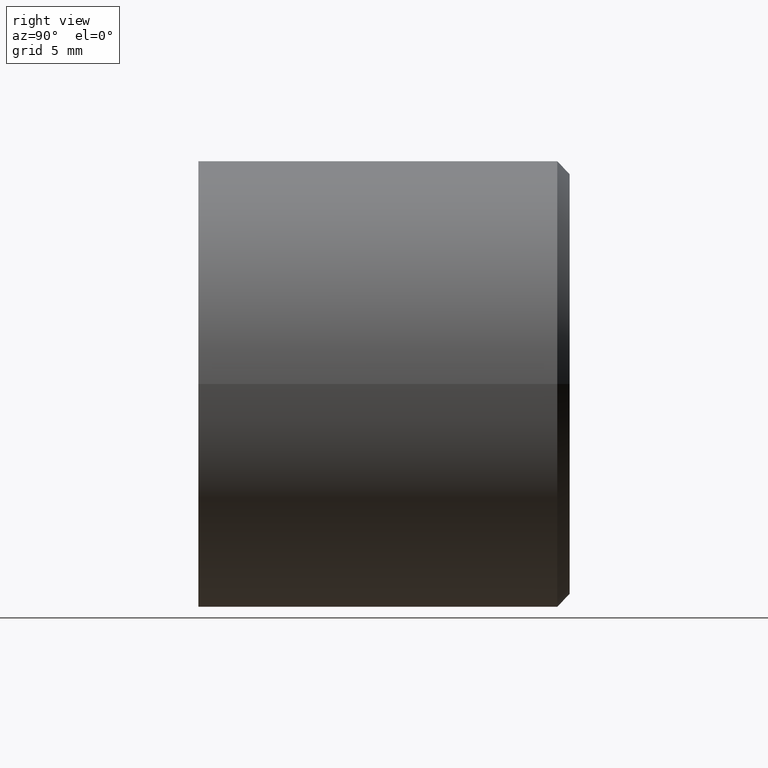
[diagram: clean part render]
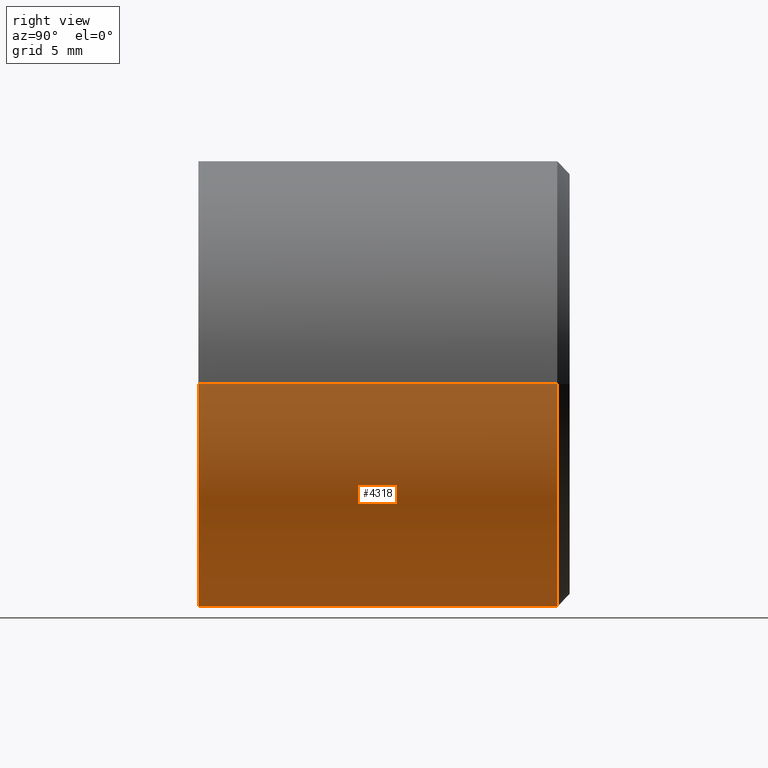
[diagram: same view with one face highlighted and labeled with its STEP entity id]
A machine part, right view. The second image highlights one B-rep face of the part: STEP entity #4318.
In plain terms, the highlighted cylindrical surface (partial cylindrical patch) has radius 9 mm, axis along (-0, 1, -0).
Its self-contained STEP definition (entity closure, byte-faithful):
#114 = EDGE_LOOP ( 'NONE', ( #12841, #4672, #11930, #12705 ) ) ;
#690 = CARTESIAN_POINT ( 'NONE',  ( 9.000000000000000000, 1.795400996330743280E-16, 1.102182119232617714E-15 ) ) ;
#1029 = DIRECTION ( 'NONE',  ( -1.994889995923048226E-17, 1.000000000000000000, -0.000000000000000000 ) ) ;
#1764 = CARTESIAN_POINT ( 'NONE',  ( -9.000000000000000000, 14.99999999999999822, 0.000000000000000000 ) ) ;
#1974 = EDGE_CURVE ( 'NONE', #6888, #9644, #5735, .T. ) ;
#2076 = VERTEX_POINT ( 'NONE', #9296 ) ;
#3028 = DIRECTION ( 'NONE',  ( -1.000000000000000000, -1.994889995923048226E-17, 0.000000000000000000 ) ) ;
#3066 = VECTOR ( 'NONE', #12370, 1000.000000000000000 ) ;
#3678 = DIRECTION ( 'NONE',  ( 1.000000000000000000, 0.000000000000000000, 0.000000000000000000 ) ) ;
#3853 = DIRECTION ( 'NONE',  ( -1.994889995923048226E-17, 1.000000000000000000, -0.000000000000000000 ) ) ;
#3942 = CARTESIAN_POINT ( 'NONE',  ( -9.000000000000000000, -1.795400996330743280E-16, 0.000000000000000000 ) ) ;
#4318 = ADVANCED_FACE ( 'NONE', ( #12639 ), #11055, .T. ) ;
#4672 = ORIENTED_EDGE ( 'NONE', *, *, #1974, .T. ) ;
#4816 = DIRECTION ( 'NONE',  ( 1.994889995923048534E-17, -1.000000000000000000, 0.000000000000000000 ) ) ;
#5610 = LINE ( 'NONE', #1764, #3066 ) ;
#5735 = CIRCLE ( 'NONE', #9312, 9.000000000000000000 ) ;
#5768 = CARTESIAN_POINT ( 'NONE',  ( 9.000000000000000000, 14.49999999999999645, 1.102182119232617714E-15 ) ) ;
#6553 = VERTEX_POINT ( 'NONE', #5768 ) ;
#6884 = CARTESIAN_POINT ( 'NONE',  ( 9.000000000000000000, 14.99999999999999822, 1.102182119232617714E-15 ) ) ;
#6888 = VERTEX_POINT ( 'NONE', #690 ) ;
#6992 = EDGE_CURVE ( 'NONE', #9644, #2076, #5610, .T. ) ;
#7334 = AXIS2_PLACEMENT_3D ( 'NONE', #10859, #4816, #3678 ) ;
#7462 = LINE ( 'NONE', #6884, #8717 ) ;
#8057 = CARTESIAN_POINT ( 'NONE',  ( 2.992334993884571723E-16, 0.000000000000000000, 0.000000000000000000 ) ) ;
#8717 = VECTOR ( 'NONE', #3853, 1000.000000000000000 ) ;
#9069 = DIRECTION ( 'NONE',  ( -1.994889995923048226E-17, 1.000000000000000000, -0.000000000000000000 ) ) ;
#9090 = DIRECTION ( 'NONE',  ( -1.000000000000000000, 0.000000000000000000, 0.000000000000000000 ) ) ;
#9296 = CARTESIAN_POINT ( 'NONE',  ( -9.000000000000000000, 14.49999999999999645, 0.000000000000000000 ) ) ;
#9312 = AXIS2_PLACEMENT_3D ( 'NONE', #8057, #9069, #3028 ) ;
#9456 = EDGE_CURVE ( 'NONE', #2076, #6553, #12178, .T. ) ;
#9534 = EDGE_CURVE ( 'NONE', #6888, #6553, #7462, .T. ) ;
#9644 = VERTEX_POINT ( 'NONE', #3942 ) ;
#10859 = CARTESIAN_POINT ( 'NONE',  ( 9.974449979615245753E-18, 14.49999999999999645, 0.000000000000000000 ) ) ;
#11055 = CYLINDRICAL_SURFACE ( 'NONE', #11484, 9.000000000000000000 ) ;
#11484 = AXIS2_PLACEMENT_3D ( 'NONE', #11996, #1029, #9090 ) ;
#11930 = ORIENTED_EDGE ( 'NONE', *, *, #6992, .T. ) ;
#11996 = CARTESIAN_POINT ( 'NONE',  ( 0.000000000000000000, 14.99999999999999822, 0.000000000000000000 ) ) ;
#12178 = CIRCLE ( 'NONE', #7334, 9.000000000000000000 ) ;
#12370 = DIRECTION ( 'NONE',  ( -1.994889995923048226E-17, 1.000000000000000000, -0.000000000000000000 ) ) ;
#12639 = FACE_OUTER_BOUND ( 'NONE', #114, .T. ) ;
#12705 = ORIENTED_EDGE ( 'NONE', *, *, #9456, .T. ) ;
#12841 = ORIENTED_EDGE ( 'NONE', *, *, #9534, .F. ) ;